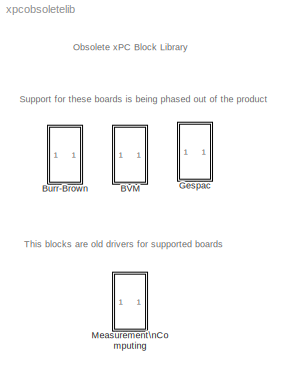
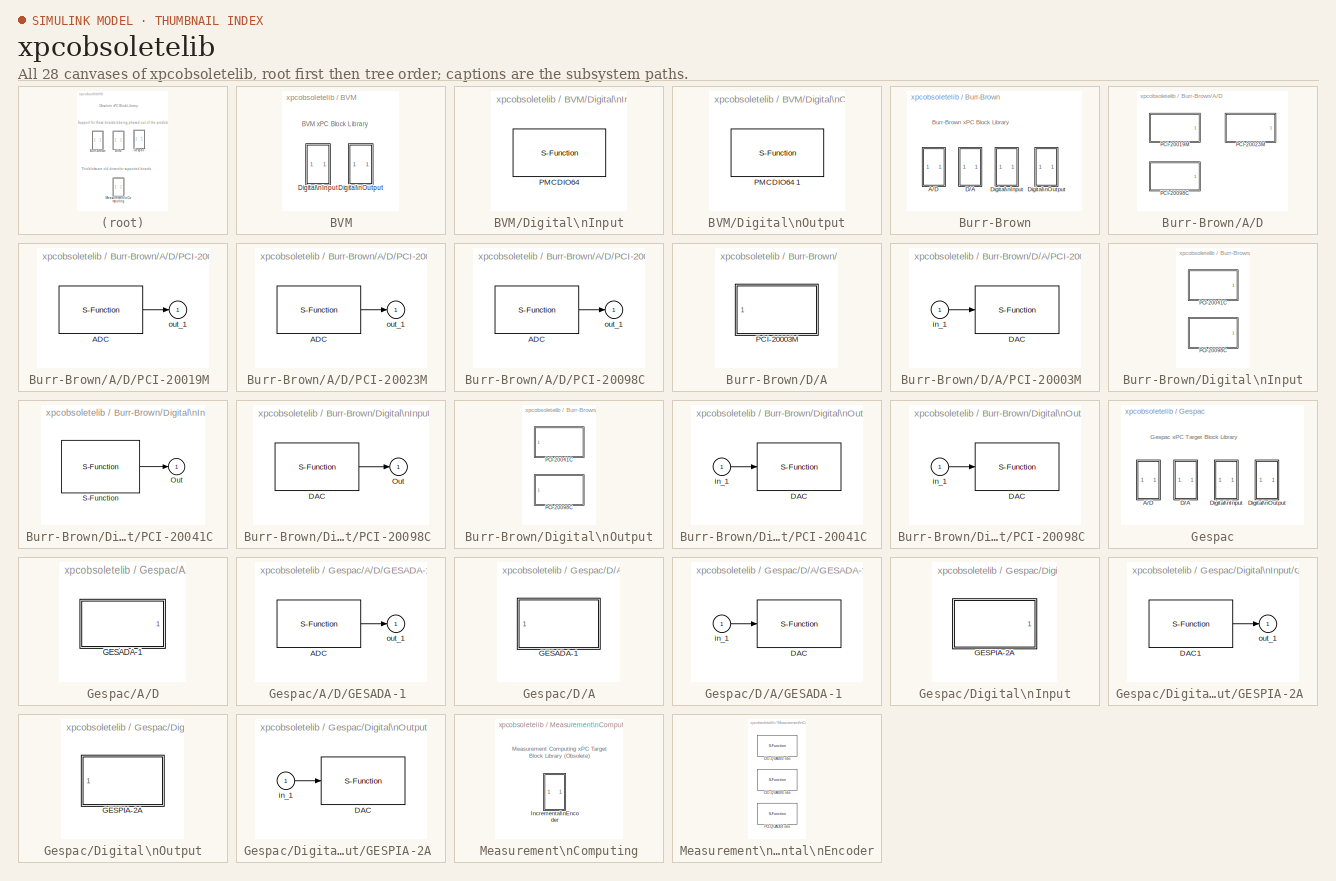
[diagram: thumbnail index - all 28 canvases of the model, root first then tree order]
MODEL xpcobsoletelib
KIND library
BLOCK [SubSystem] BVM
  EnableExecutionContextPropagation = on
  MinAlgLoopOccurrences = off
  Ports = []
  TreatAsAtomicUnit = off
BLOCK [SubSystem] BVM/Digital\nInput
  EnableExecutionContextPropagation = on
  MinAlgLoopOccurrences = off
  Ports = []
  TreatAsAtomicUnit = off
BLOCK [S-Function] BVM/Digital\nInput/PMCDIO64 
  FunctionName = dibvmpmcdio64
  InitFcn = mdiobvmpmcdio64(1)
  MaskCallbackString = maskvalues=get_param(gcb,'MaskValues');\n\nfmt=maskvalues{1};\n\nif fmt(1)=='3'\n\n	set_param(gcb, 'MaskEnables',{'on', 'on', 'off', 'off', 'on','on','on'});\n\nelse\n\n	set_param(gcb,'MaskEnables', {'on', 'off', 'off', 'off', 'on','on','on'});\n\nend||||||
  MaskDescription = PMCDIO64\nBVM\nDigital Input
  MaskDisplay = disp('PMCDIO64\\nBVM\\nDigital Input');port_label('output',1,'1');
  MaskEnableString = on,on,off,off,on,on,on
  MaskHelp = helpview(fullfile(docroot, 'mapfiles', 'xpc.map'), 'BVM_PMCDIO64_DIN')
  MaskIconFrame = on
  MaskIconOpaque = on
  MaskIconRotate = none
  MaskIconUnits = autoscale
  MaskInitialization = [maskdisplay, maskdescription, config, initial, stopaction]=mdiobvmpmcdio64( 2, port, fmt, channel, stopaction, initial, pcislot); \nset_param(gcb,'MaskDisplay',maskdisplay);\nset_param(gcb,'MaskDescription', maskdescription );\n\n
  MaskPromptString = Format:|Channel vector:|||Port (1-2):|Sample time:|PCI slot (-1: autosearch):
  MaskSelfModifiable = on
  MaskStyleString = popup(Single 32 bit port|32 One bit channels),edit,edit,edit,popup(1|2),edit,edit
  MaskTabNameString = ,,,,,,
  MaskToolTipString = on,on,on,on,on,on,on
  MaskTunableValueString = on,on,on,on,on,on,on
  MaskType = PMCDIO64-di
  MaskValueString = 32 One bit channels|[1]|||1|0.001|-1
  MaskVarAliasString = ,,,,,,
  MaskVariables = fmt=@1;channel=@2;stopaction=@3;initial=@4;port=@5;ts=@6;pcislot=@7;
  MaskVisibilityString = on,on,off,off,on,on,on
  Parameters = channel, port, ts, pcislot, config, fmt
  Ports = [0, 1]
BLOCK [SubSystem] BVM/Digital\nOutput
  EnableExecutionContextPropagation = on
  MinAlgLoopOccurrences = off
  Ports = []
  TreatAsAtomicUnit = off
BLOCK [S-Function] BVM/Digital\nOutput/PMCDIO64 1 
  FunctionName = dobvmpmcdio64
  InitFcn = mdiobvmpmcdio64(1)
  MaskCallbackString = maskvalues=get_param(gcb,'MaskValues');\n\nfmt=maskvalues{1};\n\nif fmt(1)=='3'\n\n	set_param(gcb, 'MaskEnables',{'on', 'on', 'on', 'on', 'on','on','on'});\n\nelse\n\n	set_param(gcb,'MaskEnables', {'on', 'off', 'on', 'on', 'on','on','on'});\n\nend\n\n||||||
  MaskDescription = PMCDIO64\nBVM\nDigital Output
  MaskDisplay = disp('PMCDIO64\\nBVM\\nDigital Output');port_label('input',1,'1');
  MaskEnableString = on,on,on,on,on,on,on
  MaskHelp = helpview(fullfile(docroot, 'mapfiles', 'xpc.map'), 'BVM_PMCDIO64-1_DOUT')
  MaskIconFrame = on
  MaskIconOpaque = on
  MaskIconRotate = none
  MaskIconUnits = autoscale
  MaskInitialization = [ maskdisplay, maskdescription, config, initial, stopaction ]=mdiobvmpmcdio64( 2, port, fmt, channel, stopaction, initial, pcislot);\nset_param( gcb, 'MaskDisplay', maskdisplay );\nset_param( gcb, 'MaskDescription', maskdescription );\n
  MaskPromptString = Format:|Channel vector:|Reset action vector:|Initial value vector:|Port (1-2):|Sample time:|PCI slot (-1: autosearch):
  MaskSelfModifiable = on
  MaskStyleString = popup(Single 32 bit port|32 One bit channels),edit,edit,edit,popup(1|2),edit,edit
  MaskTabNameString = ,,,,,,
  MaskToolTipString = on,on,on,on,on,on,on
  MaskTunableValueString = on,on,on,on,on,on,on
  MaskType = PMCDIO64-do
  MaskValueString = 32 One bit channels|[1]|[0]|[0]|1|0.001|-1
  MaskVarAliasString = ,,,,,,
  MaskVariables = fmt=@1;channel=@2;stopaction=@3;initial=&4;port=@5;ts=@6;pcislot=@7;
  MaskVisibilityString = on,on,on,on,on,on,on
  Parameters = channel, port, ts, pcislot, config, fmt, stopaction, initial
  Ports = [1]
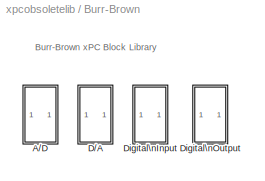
BLOCK [SubSystem] Burr-Brown
  EnableExecutionContextPropagation = on
  MinAlgLoopOccurrences = off
  Ports = []
  TreatAsAtomicUnit = off
BLOCK [SubSystem] Burr-Brown/A//D
  EnableExecutionContextPropagation = on
  MinAlgLoopOccurrences = off
  Ports = []
  TreatAsAtomicUnit = off
BLOCK [SubSystem] Burr-Brown/A//D/PCI-20019M 
  EnableExecutionContextPropagation = on
  MaskCallbackString = ||||
  MaskDescription = Burr-Brown\nPCI-20019M\nAnalog Input
  MaskDisplay = disp('PCI-20019M\\nBurr-Brown\\nAnalog Input')
  MaskEnableString = on,on,on,on,on
  MaskHelp = helpview(fullfile(docroot, 'mapfiles', 'xpc.map'), 'Burr-Brown_PCI-20019M_AD')
  MaskIconFrame = on
  MaskIconOpaque = on
  MaskIconRotate = none
  MaskIconUnits = autoscale
  MaskInitialization = baseaddress=hex2dec(baseaddress(3:end));
  MaskPromptString = Number of channels:|Range vector:|Sample time:|Module number (1-3):|Base address (i.e. 0xd000):
  MaskStyleString = edit,edit,edit,edit,edit
  MaskTabNameString = ,,,,
  MaskToolTipString = on,on,on,on,on
  MaskTunableValueString = on,on,on,on,on
  MaskType = Analog Input Module
  MaskValueString = 1|-10|0.001|1|0xd000
  MaskVarAliasString = ,,,,
  MaskVariables = channels=@1;range=@2;sampletime=@3;module=@4;baseaddress=&5;
  MaskVisibilityString = on,on,on,on,on
  MinAlgLoopOccurrences = off
  Ports = [0, 1]
  ShowPortLabels = off
  TreatAsAtomicUnit = off
BLOCK [S-Function] Burr-Brown/A//D/PCI-20019M /ADC
  FunctionName = adbbpci20019
  Parameters = channels, range, sampletime, module, baseaddress
  Ports = [0, 1]
BLOCK [Outport] Burr-Brown/A//D/PCI-20019M /out_1
  BusOutputAsStruct = off
  IconDisplay = Port number
  InitialOutput = 0
BLOCK [SubSystem] Burr-Brown/A//D/PCI-20023M 
  EnableExecutionContextPropagation = on
  MaskCallbackString = ||||
  MaskDescription = Burr-Brown\nPCI-20023M\nAnalog Input
  MaskDisplay = disp('PCI-20023M\\nBurr-Brown\\nAnalog Input')
  MaskEnableString = on,on,on,on,on
  MaskHelp = helpview(fullfile(docroot, 'mapfiles', 'xpc.map'), 'Burr-Brown_PCI-20023M_AD')
  MaskIconFrame = on
  MaskIconOpaque = on
  MaskIconRotate = none
  MaskIconUnits = autoscale
  MaskInitialization = baseaddress=hex2dec(baseaddress(3:end));
  MaskPromptString = Number of channels:|Range vector:|Sample time:|Module number (1-3):|Base address (i.e. 0xd000):
  MaskStyleString = edit,edit,edit,edit,edit
  MaskTabNameString = ,,,,
  MaskToolTipString = on,on,on,on,on
  MaskTunableValueString = on,on,on,on,on
  MaskType = Analog Input Module
  MaskValueString = 1|-10|0.001|1|0xd000
  MaskVarAliasString = ,,,,
  MaskVariables = channels=@1;range=@2;sampletime=@3;module=@4;baseaddress=&5;
  MaskVisibilityString = on,on,on,on,on
  MinAlgLoopOccurrences = off
  Ports = [0, 1]
  ShowPortLabels = off
  TreatAsAtomicUnit = off
BLOCK [S-Function] Burr-Brown/A//D/PCI-20023M /ADC
  FunctionName = adbbpci20023
  Parameters = channels, range, sampletime, module, baseaddress
  Ports = [0, 1]
BLOCK [Outport] Burr-Brown/A//D/PCI-20023M /out_1
  BusOutputAsStruct = off
  IconDisplay = Port number
  InitialOutput = 0
BLOCK [SubSystem] Burr-Brown/A//D/PCI-20098C 
  EnableExecutionContextPropagation = on
  MaskCallbackString = ||||
  MaskDescription = Burr-Brown\nPCI-20098C\nAnalog Input
  MaskDisplay = disp('PCI-20098C\\nBurr-Brown\\nAnalog Input')
  MaskEnableString = on,on,on,on,on
  MaskHelp = helpview(fullfile(docroot, 'mapfiles', 'xpc.map'), 'Burr-Brown_PCI-20098C_AD')
  MaskIconFrame = on
  MaskIconOpaque = on
  MaskIconRotate = none
  MaskIconUnits = autoscale
  MaskInitialization = baseaddress=hex2dec(baseaddress(3:end));
  MaskPromptString = Number of channels:|Range vector:|Input coupling:|Sample time:|Base address (i.e. 0xd000):
  MaskStyleString = edit,popup(+- 10 V|+- 5V|0-10V),popup(Single-ended (16 channels)|Differential (8 channels)),edit,edit
  MaskTabNameString = ,,,,
  MaskToolTipString = on,on,on,on,on
  MaskTunableValueString = on,on,on,on,on
  MaskType = Analog Input Module
  MaskValueString = 1|+- 10 V|Single-ended (16 channels)|0.001|0xd000
  MaskVarAliasString = ,,,,
  MaskVariables = channels=@1;range=@2;mux=@3;sampletime=@4;baseaddress=&5;
  MaskVisibilityString = on,on,on,on,on
  MinAlgLoopOccurrences = off
  Ports = [0, 1]
  ShowPortLabels = off
  TreatAsAtomicUnit = off
BLOCK [S-Function] Burr-Brown/A//D/PCI-20098C /ADC
  FunctionName = adbbpci20098
  Parameters = channels, range, mux, sampletime, baseaddress
  Ports = [0, 1]
BLOCK [Outport] Burr-Brown/A//D/PCI-20098C /out_1
  BusOutputAsStruct = off
  IconDisplay = Port number
  InitialOutput = 0
BLOCK [SubSystem] Burr-Brown/D//A
  EnableExecutionContextPropagation = on
  MinAlgLoopOccurrences = off
  Ports = []
  TreatAsAtomicUnit = off
BLOCK [SubSystem] Burr-Brown/D//A/PCI-20003M 
  EnableExecutionContextPropagation = on
  MaskCallbackString = |||
  MaskDescription = Burr-Brown\nPCI-20003M\nAnalog Output
  MaskDisplay = disp('PCI-20003M\\nBurr-Brown\\nAnalog Output')
  MaskEnableString = on,on,on,on
  MaskHelp = helpview(fullfile(docroot, 'mapfiles', 'xpc.map'), 'Burr-Brown_PCI-20003M_DA')
  MaskIconFrame = on
  MaskIconOpaque = on
  MaskIconRotate = none
  MaskIconUnits = autoscale
  MaskInitialization = baseaddress=hex2dec(baseaddress(3:end));
  MaskPromptString = Channel vector:|Sample time:|Module number (1-3):|Base address (i.e. 0xd000):
  MaskStyleString = edit,edit,edit,edit
  MaskTabNameString = ,,,
  MaskToolTipString = on,on,on,on
  MaskTunableValueString = on,on,on,on
  MaskType = Analog Output Module
  MaskValueString = [-10]|0.001|1|0xd000
  MaskVarAliasString = ,,,
  MaskVariables = channels=@1;sampletime=@2;module=@3;baseaddress=&4;
  MaskVisibilityString = on,on,on,on
  MinAlgLoopOccurrences = off
  Ports = [1]
  ShowPortLabels = off
  TreatAsAtomicUnit = off
BLOCK [S-Function] Burr-Brown/D//A/PCI-20003M /DAC
  FunctionName = dabbpci20003
  Parameters = channels, sampletime, module, baseaddress
  Ports = [1]
BLOCK [Inport] Burr-Brown/D//A/PCI-20003M /in_1
  IconDisplay = Port number
  LatchInput = off
BLOCK [SubSystem] Burr-Brown/Digital\nInput
  EnableExecutionContextPropagation = on
  MinAlgLoopOccurrences = off
  Ports = []
  TreatAsAtomicUnit = off
BLOCK [SubSystem] Burr-Brown/Digital\nInput/PCI-20041C 
  EnableExecutionContextPropagation = on
  MaskCallbackString = |||
  MaskDescription = Burr Brown\nPCI-20041C\nDigital Input\n
  MaskDisplay = disp('PCI-20041C\\nBurr-Brown\\nDigital Input')
  MaskEnableString = on,on,on,on
  MaskHelp = helpview(fullfile(docroot, 'mapfiles', 'xpc.map'), 'Burr-Brown_PCI-20041C_DIN')
  MaskIconFrame = on
  MaskIconOpaque = on
  MaskIconRotate = none
  MaskIconUnits = autoscale
  MaskInitialization = baseaddress=hex2dec(baseaddress(3:end));
  MaskPromptString = Number of channels:|Port number (0-3):|Sample time:|Base address (i.e. 0xd000):
  MaskStyleString = edit,edit,edit,edit
  MaskTabNameString = ,,,
  MaskToolTipString = on,on,on,on
  MaskTunableValueString = on,on,on,on
  MaskType = Digital Input Module
  MaskValueString = 1|0|0.001|0xd000
  MaskVarAliasString = ,,,
  MaskVariables = n_channels=@1;port=@2;sample_time=@3;baseaddress=&4;
  MaskVisibilityString = on,on,on,on
  MinAlgLoopOccurrences = off
  Ports = [0, 1]
  ShowPortLabels = off
  TreatAsAtomicUnit = off
BLOCK [Outport] Burr-Brown/Digital\nInput/PCI-20041C /Out
  BusOutputAsStruct = off
  IconDisplay = Port number
  InitialOutput = 0
BLOCK [S-Function] Burr-Brown/Digital\nInput/PCI-20041C /S-Function
  FunctionName = dibbpci20041
  Parameters = n_channels,port,sample_time,baseaddress
  Ports = [0, 1]
BLOCK [SubSystem] Burr-Brown/Digital\nInput/PCI-20098C 
  EnableExecutionContextPropagation = on
  MaskCallbackString = |||
  MaskDescription = Burr Brown\nPCI-20098C\nDigital Input\n
  MaskDisplay = disp('PCI-20098C\\nBurr-Brown\\nDigital Input')
  MaskEnableString = on,on,on,on
  MaskHelp = helpview(fullfile(docroot, 'mapfiles', 'xpc.map'), 'Burr-Brown_PCI-20098C_DIN')
  MaskIconFrame = on
  MaskIconOpaque = on
  MaskIconRotate = none
  MaskIconUnits = autoscale
  MaskInitialization = baseaddress=hex2dec(baseaddress(3:end));
  MaskPromptString = Number of channels:|Port:|Sample time:|Base address (i.e. 0xd000):
  MaskStyleString = edit,popup(A|B),edit,edit
  MaskTabNameString = ,,,
  MaskToolTipString = on,on,on,on
  MaskTunableValueString = on,on,on,on
  MaskType = Digital Input Module
  MaskValueString = 1|A|0.001|0xd000
  MaskVarAliasString = ,,,
  MaskVariables = n_channels=@1;port=@2;sample_time=@3;baseaddress=&4;
  MaskVisibilityString = on,on,on,on
  MinAlgLoopOccurrences = off
  Ports = [0, 1]
  ShowPortLabels = off
  TreatAsAtomicUnit = off
BLOCK [S-Function] Burr-Brown/Digital\nInput/PCI-20098C /DAC
  FunctionName = dibbpci20098
  Parameters = n_channels,port,sample_time,baseaddress
  Ports = [0, 1]
BLOCK [Outport] Burr-Brown/Digital\nInput/PCI-20098C /Out
  BusOutputAsStruct = off
  IconDisplay = Port number
  InitialOutput = 0
BLOCK [SubSystem] Burr-Brown/Digital\nOutput
  EnableExecutionContextPropagation = on
  MinAlgLoopOccurrences = off
  Ports = []
  TreatAsAtomicUnit = off
BLOCK [SubSystem] Burr-Brown/Digital\nOutput/PCI-20041C 
  EnableExecutionContextPropagation = on
  MaskCallbackString = |||
  MaskDescription = Burr Brown\nPCI-20041C\nDigital Output\n
  MaskDisplay = disp('PCI-20041C\\nBurr-Brown\\nDigital Output')
  MaskEnableString = on,on,on,on
  MaskHelp = helpview(fullfile(docroot, 'mapfiles', 'xpc.map'), 'Burr-Brown_PCI-20041C_DOUT')
  MaskIconFrame = on
  MaskIconOpaque = on
  MaskIconRotate = none
  MaskIconUnits = autoscale
  MaskInitialization = baseaddress=hex2dec(baseaddress(3:end));
  MaskPromptString = Number of channels:|Port number (0-3):|Sample time:|Base address (i.e. 0xd000):
  MaskStyleString = edit,edit,edit,edit
  MaskTabNameString = ,,,
  MaskToolTipString = on,on,on,on
  MaskTunableValueString = on,on,on,on
  MaskType = Digital Output Module
  MaskValueString = 1|0|0.001|0xd000
  MaskVarAliasString = ,,,
  MaskVariables = n_channels=@1;port=@2;sample_time=@3;baseaddress=&4;
  MaskVisibilityString = on,on,on,on
  MinAlgLoopOccurrences = off
  Ports = [1]
  ShowPortLabels = off
  TreatAsAtomicUnit = off
BLOCK [S-Function] Burr-Brown/Digital\nOutput/PCI-20041C /DAC
  FunctionName = dobbpci20041
  Parameters = n_channels,port,sample_time,baseaddress
  Ports = [1]
BLOCK [Inport] Burr-Brown/Digital\nOutput/PCI-20041C /in_1
  IconDisplay = Port number
  LatchInput = off
BLOCK [SubSystem] Burr-Brown/Digital\nOutput/PCI-20098C 
  EnableExecutionContextPropagation = on
  MaskCallbackString = |||
  MaskDescription = Burr Brown\nPCI-20098C\nDigital Output\n
  MaskDisplay = disp('PCI-20098C\\nBurr-Brown\\nDigital Output')
  MaskEnableString = on,on,on,on
  MaskHelp = helpview(fullfile(docroot, 'mapfiles', 'xpc.map'), 'Burr-Brown_PCI-20098C_DOUT')
  MaskIconFrame = on
  MaskIconOpaque = on
  MaskIconRotate = none
  MaskIconUnits = autoscale
  MaskInitialization = baseaddress=hex2dec(baseaddress(3:end));
  MaskPromptString = Number of channels:|Port:|Sample time:|Base address (i.e. 0xd000):
  MaskStyleString = edit,popup(A|B),edit,edit
  MaskTabNameString = ,,,
  MaskToolTipString = on,on,on,on
  MaskTunableValueString = on,on,on,on
  MaskType = Digital Output Module
  MaskValueString = 1|A|0.001|0xd000
  MaskVarAliasString = ,,,
  MaskVariables = n_channels=@1;port=@2;sample_time=@3;baseaddress=&4;
  MaskVisibilityString = on,on,on,on
  MinAlgLoopOccurrences = off
  Ports = [1]
  ShowPortLabels = off
  TreatAsAtomicUnit = off
BLOCK [S-Function] Burr-Brown/Digital\nOutput/PCI-20098C /DAC
  FunctionName = dobbpci20098
  Parameters = n_channels,port,sample_time,baseaddress
  Ports = [1]
BLOCK [Inport] Burr-Brown/Digital\nOutput/PCI-20098C /in_1
  IconDisplay = Port number
  LatchInput = off
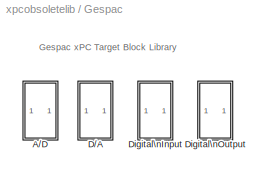
BLOCK [SubSystem] Gespac
  EnableExecutionContextPropagation = on
  MinAlgLoopOccurrences = off
  Ports = []
  TreatAsAtomicUnit = off
BLOCK [SubSystem] Gespac/A//D
  EnableExecutionContextPropagation = on
  MinAlgLoopOccurrences = off
  Ports = []
  TreatAsAtomicUnit = off
BLOCK [SubSystem] Gespac/A//D/GESADA-1 
  EnableExecutionContextPropagation = on
  MaskCallbackString = ||||
  MaskDescription = GESADA-1\nGespac\nAnalog Input\n
  MaskDisplay = disp('GESADA-1\\nGespac\\nAnalog Input')
  MaskEnableString = on,on,on,on,on
  MaskHelp = helpview(fullfile(docroot, 'mapfiles', 'xpc.map'), 'Gespac_GESADA-1_AD')
  MaskIconFrame = on
  MaskIconOpaque = on
  MaskIconRotate = none
  MaskIconUnits = autoscale
  MaskInitialization = baseaddress=hex2dec(baseaddress(3:end));
  MaskPromptString = Number of channels:|Range vector:|Input coupling:|Sample time:|Base address (i.e. 0xd000):
  MaskStyleString = edit,popup(+-10 V|+-5 V|0-10 V),popup(Single-ended (16 channels)|Differential (8 channels)),edit,edit
  MaskTabNameString = ,,,,
  MaskToolTipString = on,on,on,on,on
  MaskTunableValueString = on,on,on,on,on
  MaskType = Analog Input Module
  MaskValueString = 1|+-10 V|Single-ended (16 channels)|0.001|0x300
  MaskVarAliasString = ,,,,
  MaskVariables = channels=@1;range=@2;mux=@3;sampletime=@4;baseaddress=&5;
  MaskVisibilityString = on,on,on,on,on
  MinAlgLoopOccurrences = off
  Ports = [0, 1]
  ShowPortLabels = off
  TreatAsAtomicUnit = off
BLOCK [S-Function] Gespac/A//D/GESADA-1 /ADC
  FunctionName = adgesada1
  Parameters = channels, range, mux, sampletime, baseaddress
  Ports = [0, 1]
BLOCK [Outport] Gespac/A//D/GESADA-1 /out_1
  BusOutputAsStruct = off
  IconDisplay = Port number
  InitialOutput = 0
BLOCK [SubSystem] Gespac/D//A
  EnableExecutionContextPropagation = on
  MinAlgLoopOccurrences = off
  Ports = []
  TreatAsAtomicUnit = off
BLOCK [SubSystem] Gespac/D//A/GESADA-1 
  EnableExecutionContextPropagation = on
  MaskCallbackString = ||
  MaskDescription = GESADA-1\nGespac\nAnalog Output
  MaskDisplay = disp('GESADA-1\\nGespac\\nAnalog Output')
  MaskEnableString = on,on,on
  MaskHelp = helpview(fullfile(docroot, 'mapfiles', 'xpc.map'), 'Gespac_GESADA-1_DA')
  MaskIconFrame = on
  MaskIconOpaque = on
  MaskIconRotate = none
  MaskIconUnits = autoscale
  MaskInitialization = baseaddress=hex2dec(baseaddress(3:end));
  MaskPromptString = Channel vector:|Sample time:|Base address (i.e. 0xd000):
  MaskStyleString = edit,edit,edit
  MaskTabNameString = ,,
  MaskToolTipString = on,on,on
  MaskTunableValueString = on,on,on
  MaskType = Analog Output Module
  MaskValueString = [-10]|0.001|0x300
  MaskVarAliasString = ,,
  MaskVariables = channels=@1;sampletime=@2;baseaddress=&3;
  MaskVisibilityString = on,on,on
  MinAlgLoopOccurrences = off
  Ports = [1]
  ShowPortLabels = off
  TreatAsAtomicUnit = off
BLOCK [S-Function] Gespac/D//A/GESADA-1 /DAC
  FunctionName = dagesada1
  Parameters = channels, sampletime, baseaddress
  Ports = [1]
BLOCK [Inport] Gespac/D//A/GESADA-1 /in_1
  IconDisplay = Port number
  LatchInput = off
BLOCK [SubSystem] Gespac/Digital\nInput
  EnableExecutionContextPropagation = on
  MinAlgLoopOccurrences = off
  Ports = []
  TreatAsAtomicUnit = off
BLOCK [SubSystem] Gespac/Digital\nInput/GESPIA-2A 
  EnableExecutionContextPropagation = on
  MaskCallbackString = |||
  MaskDescription = Gespac\nGESPIA-2A\nDigital Input
  MaskDisplay = disp('GESPIA-2A\\nGespac\\nDigital Input')
  MaskEnableString = on,on,on,on
  MaskHelp = helpview(fullfile(docroot, 'mapfiles', 'xpc.map'), 'Gespac_GESPIA-2A_DIN')
  MaskIconFrame = on
  MaskIconOpaque = on
  MaskIconRotate = none
  MaskIconUnits = autoscale
  MaskInitialization = baseaddress=hex2dec(baseaddress(3:end));
  MaskPromptString = Number of channels:|Port name:|Sample time:|Base address (i.e. 0xd000):
  MaskStyleString = edit,popup(PIA0 A|PIA0 B|PIA1 A|PIA1 B),edit,edit
  MaskTabNameString = ,,,
  MaskToolTipString = on,on,on,on
  MaskTunableValueString = on,on,on,on
  MaskType = Digital Input Module
  MaskValueString = 1|PIA0 A|0.001|0x300
  MaskVarAliasString = ,,,
  MaskVariables = n_channels=@1;port=@2;sample_time=@3;baseaddress=&4;
  MaskVisibilityString = on,on,on,on
  MinAlgLoopOccurrences = off
  Ports = [0, 1]
  ShowPortLabels = off
  TreatAsAtomicUnit = off
BLOCK [S-Function] Gespac/Digital\nInput/GESPIA-2A /DAC1
  FunctionName = digespia2a
  Parameters = n_channels,port,sample_time,baseaddress
  Ports = [0, 1]
BLOCK [Outport] Gespac/Digital\nInput/GESPIA-2A /out_1
  BusOutputAsStruct = off
  IconDisplay = Port number
  InitialOutput = 0
BLOCK [SubSystem] Gespac/Digital\nOutput
  EnableExecutionContextPropagation = on
  MinAlgLoopOccurrences = off
  Ports = []
  TreatAsAtomicUnit = off
BLOCK [SubSystem] Gespac/Digital\nOutput/GESPIA-2A 
  EnableExecutionContextPropagation = on
  MaskCallbackString = |||
  MaskDescription = Gespac\nGESPIA-2A\nDigital Output
  MaskDisplay = disp('GESPIA-2A\\nGespac\\nDigital Output')
  MaskEnableString = on,on,on,on
  MaskHelp = helpview(fullfile(docroot, 'mapfiles', 'xpc.map'), 'Gespac_GESPIA-2A_DOUT')
  MaskIconFrame = on
  MaskIconOpaque = on
  MaskIconRotate = none
  MaskIconUnits = autoscale
  MaskInitialization = baseaddress=hex2dec(baseaddress(3:end));
  MaskPromptString = Number of channels:|Port name:|Sample time:|Base address (i.e. 0xd000):
  MaskStyleString = edit,popup(PIA0 A|PIA0 B|PIA1 A|PIA1 B),edit,edit
  MaskTabNameString = ,,,
  MaskToolTipString = on,on,on,on
  MaskTunableValueString = on,on,on,on
  MaskType = Digital Output Module
  MaskValueString = 1|PIA0 A|0.001|0x300
  MaskVarAliasString = ,,,
  MaskVariables = n_channels=@1;port=@2;sample_time=@3;baseaddress=&4;
  MaskVisibilityString = on,on,on,on
  MinAlgLoopOccurrences = off
  Ports = [1]
  ShowPortLabels = off
  TreatAsAtomicUnit = off
BLOCK [S-Function] Gespac/Digital\nOutput/GESPIA-2A /DAC
  FunctionName = dogespia2a
  Parameters = n_channels,port,sample_time,baseaddress
  Ports = [1]
BLOCK [Inport] Gespac/Digital\nOutput/GESPIA-2A /in_1
  IconDisplay = Port number
  LatchInput = off
BLOCK [SubSystem] Measurement\nComputing
  EnableExecutionContextPropagation = on
  MinAlgLoopOccurrences = off
  Ports = []
  TreatAsAtomicUnit = off
BLOCK [SubSystem] Measurement\nComputing/Incremental\nEncoder
  EnableExecutionContextPropagation = on
  MinAlgLoopOccurrences = off
  Ports = []
  TreatAsAtomicUnit = off
BLOCK [S-Function] Measurement\nComputing/Incremental\nEncoder/CIO-QUAD02 obs
  FunctionName = enccbcioquad
  InitFcn = menccbcioquad(0);
  MaskCallbackString = |||||||
  MaskDescription = CIO-QUAD02\nComputer Boards\nIncremental Encoder
  MaskDisplay = text(0.05,0.75,'CIO-QUAD02','horizontalAlignment','left');text(0.05,0.5,'Comp. Boards','horizontalAlignment','left');text(0.05,0.25,'Inc. Encoder','horizontalAlignment','left');port_label('output',1,'Angle')port_label('output',2,'Turns')port_label('output',3,'Init')
  MaskEnableString = on,on,on,on,on,on,on,on
  MaskHelp = helpview(fullfile(docroot, 'mapfiles', 'xpc.map'), 'ComputerBoards_CIO-QUAD02_Encoder')
  MaskIconFrame = on
  MaskIconOpaque = on
  MaskIconRotate = none
  MaskIconUnits = normalized
  MaskInitialization = convBaseAddr = 0;\nboardtype = 1;\n[convBaseAddr]=menccbcioquad(1, module ,baseAddr, 0, boardtype);
  MaskPromptString = Function module:|Counter reset by index:|Positive rotation:|Mode:|Resolution:|Filter prescale factor:|Sample time:|Base address (i.e. 0xd000):
  MaskSelfModifiable = on
  MaskStyleString = popup(1|2),popup(Continuous|Only first|Index input disabled),popup(Clockwise|Counter Clockwise),popup(Single|Double|Quadruple),edit,edit,edit,edit
  MaskTabNameString = ,,,,,,,
  MaskToolTipString = on,on,on,on,on,on,on,on
  MaskTunableValueString = on,on,on,on,on,on,on,on
  MaskType = enccbcioquad
  MaskValueString = 1|Only First|Clockwise|single|1024|0|0.001|0x300
  MaskVarAliasString = ,,,,,,,
  MaskVariables = module=@1;counting=@2;rotation=@3;modetype=@4;res=@5;prescale=@6;ts=@7;baseAddr=&8;
  MaskVisibilityString = on,on,on,on,on,on,on,on
  Parameters = convBaseAddr, res, modetype, module, counting, rotation, prescale, ts, boardtype
  Ports = [0, 3]
BLOCK [S-Function] Measurement\nComputing/Incremental\nEncoder/CIO-QUAD04 obs
  FunctionName = enccbcioquad
  InitFcn = menccbcioquad(0);
  MaskCallbackString = |||||||
  MaskDescription = CIO-QUAD04\nComputer Boards\nIncremental Encoder
  MaskDisplay = text(0.05,0.75,'CIO-QUAD04','horizontalAlignment','left');text(0.05,0.5,'Comp. Boards','horizontalAlignment','left');text(0.05,0.25,'Inc. Encoder','horizontalAlignment','left');port_label('output',1,'Angle')port_label('output',2,'Turns')port_label('output',3,'Init')
  MaskEnableString = on,on,on,on,on,on,on,on
  MaskHelp = helpview(fullfile(docroot, 'mapfiles', 'xpc.map'), 'ComputerBoards_CIO-QUAD04_Encoder')
  MaskIconFrame = on
  MaskIconOpaque = on
  MaskIconRotate = none
  MaskIconUnits = normalized
  MaskInitialization = convBaseAddr = 0;\nboardtype = 2;\n[convBaseAddr]=menccbcioquad(1, module ,baseAddr, 0, boardtype);
  MaskPromptString = Function module:|Counting reset by index:|Positive rotation:|Mode:|Resolution:|Filter prescale factor:|Sample time:|Base address (i.e. 0xd000):
  MaskSelfModifiable = on
  MaskStyleString = popup(1|2|3|4),popup(Continuous|Only first|Index input disabled),popup(Clockwise|Counter Clockwise),popup(Single|Double|Quadruple),edit,edit,edit,edit
  MaskTabNameString = ,,,,,,,
  MaskToolTipString = on,on,on,on,on,on,on,on
  MaskTunableValueString = on,on,on,on,on,on,on,on
  MaskType = enccbcioquad
  MaskValueString = 1|Only first|Clockwise|Single|1024|0|0.001|0x300
  MaskVarAliasString = ,,,,,,,
  MaskVariables = module=@1;counting=@2;rotation=@3;modetype=@4;res=@5;prescale=@6;ts=@7;baseAddr=&8;
  MaskVisibilityString = on,on,on,on,on,on,on,on
  Parameters = convBaseAddr, res, modetype, module, counting, rotation, prescale, ts, boardtype
  Ports = [0, 3]
BLOCK [S-Function] Measurement\nComputing/Incremental\nEncoder/PCI-QUAD04 obs
  FunctionName = enccbcioquad
  InitFcn = menccbcioquad(0);
  MaskCallbackString = |||||||
  MaskDescription = PCI-QUAD04\nComputer Boards\nIncremental Encoder
  MaskDisplay = text(0.05,0.75,'PCI-QUAD04','horizontalAlignment','left');text(0.05,0.5,'Comp. Boards','horizontalAlignment','left');text(0.05,0.25,'Inc. Encoder','horizontalAlignment','left');port_label('output',1,'Angle')port_label('output',2,'Turns')port_label('output',3,'Init')
  MaskEnableString = on,on,on,on,on,on,on,on
  MaskHelp = helpview(fullfile(docroot, 'mapfiles', 'xpc.map'), 'ComputerBoards_PCI-QUAD04_Encoder')
  MaskIconFrame = on
  MaskIconOpaque = on
  MaskIconRotate = none
  MaskIconUnits = normalized
  MaskInitialization = boardtype = 3;\nmenccbcioquad(1, module ,'0x300', convBaseAddr, boardtype);
  MaskPromptString = Function module:|Counting reset by index:|Positive rotation:|Mode:|Resolution:|Filter prescale factor:|Sample time:|PCI slot (-1: autosearch):
  MaskSelfModifiable = on
  MaskStyleString = popup(1|2|3|4),popup(Continuous|Only first|Index input disabled),popup(Clockwise|Counter Clockwise),popup(Single|Double|Quadruple),edit,edit,edit,edit
  MaskTabNameString = ,,,,,,,
  MaskToolTipString = on,on,on,on,on,on,on,on
  MaskTunableValueString = on,on,on,on,on,on,on,on
  MaskType = enccbcioquad
  MaskValueString = 1|Only first|Clockwise|Single|1024|0|0.001|-1
  MaskVarAliasString = ,,,,,,,
  MaskVariables = module=@1;counting=@2;rotation=@3;modetype=@4;res=@5;prescale=@6;ts=@7;convBaseAddr=@8;
  MaskVisibilityString = on,on,on,on,on,on,on,on
  Parameters = convBaseAddr, res, modetype, module, counting, rotation, prescale, ts, boardtype
  Ports = [0, 3]
ANNOTATION (root): Obsolete xPC Block Library
ANNOTATION (root): Support for these boards is being phased out of the product
ANNOTATION (root): This blocks are old drivers for supported boards
ANNOTATION BVM: BVM xPC Block Library
ANNOTATION Burr-Brown: Burr-Brown xPC Block Library
ANNOTATION Gespac: Gespac xPC Target Block Library
ANNOTATION Measurement\nComputing: Measurement Computing xPC Target \nBlock Library (Obsolete)
LINE Burr-Brown/A//D/PCI-20019M /ADC:1 -> Burr-Brown/A//D/PCI-20019M /out_1:1
LINE Burr-Brown/A//D/PCI-20023M /ADC:1 -> Burr-Brown/A//D/PCI-20023M /out_1:1
LINE Burr-Brown/A//D/PCI-20098C /ADC:1 -> Burr-Brown/A//D/PCI-20098C /out_1:1
LINE Burr-Brown/D//A/PCI-20003M /in_1:1 -> Burr-Brown/D//A/PCI-20003M /DAC:1
LINE Burr-Brown/Digital\nInput/PCI-20041C /S-Function:1 -> Burr-Brown/Digital\nInput/PCI-20041C /Out:1
LINE Burr-Brown/Digital\nInput/PCI-20098C /DAC:1 -> Burr-Brown/Digital\nInput/PCI-20098C /Out:1
LINE Burr-Brown/Digital\nOutput/PCI-20041C /in_1:1 -> Burr-Brown/Digital\nOutput/PCI-20041C /DAC:1
LINE Burr-Brown/Digital\nOutput/PCI-20098C /in_1:1 -> Burr-Brown/Digital\nOutput/PCI-20098C /DAC:1
LINE Gespac/A//D/GESADA-1 /ADC:1 -> Gespac/A//D/GESADA-1 /out_1:1
LINE Gespac/D//A/GESADA-1 /in_1:1 -> Gespac/D//A/GESADA-1 /DAC:1
LINE Gespac/Digital\nInput/GESPIA-2A /DAC1:1 -> Gespac/Digital\nInput/GESPIA-2A /out_1:1
LINE Gespac/Digital\nOutput/GESPIA-2A /in_1:1 -> Gespac/Digital\nOutput/GESPIA-2A /DAC:1
